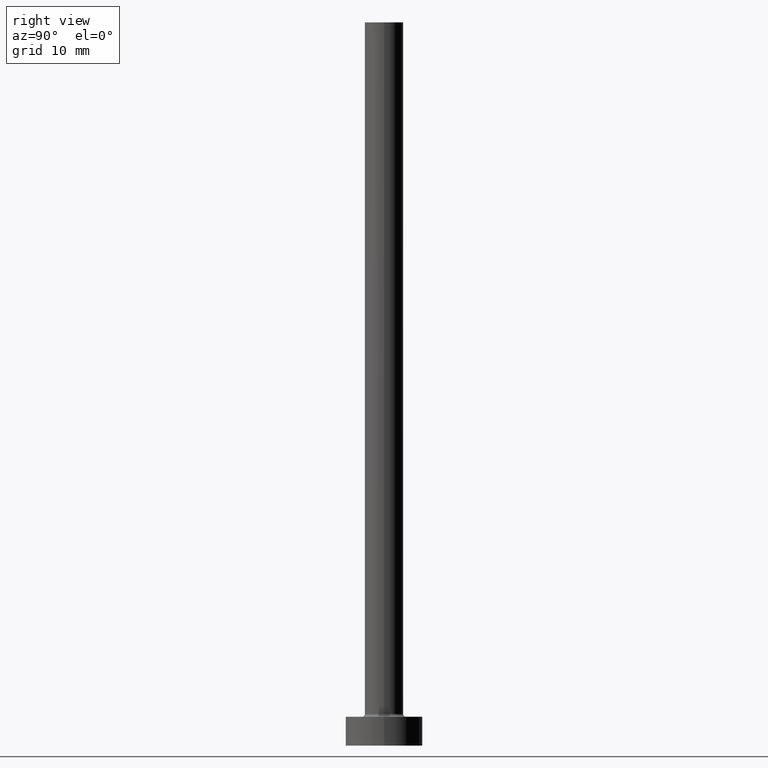
[diagram: clean part render]
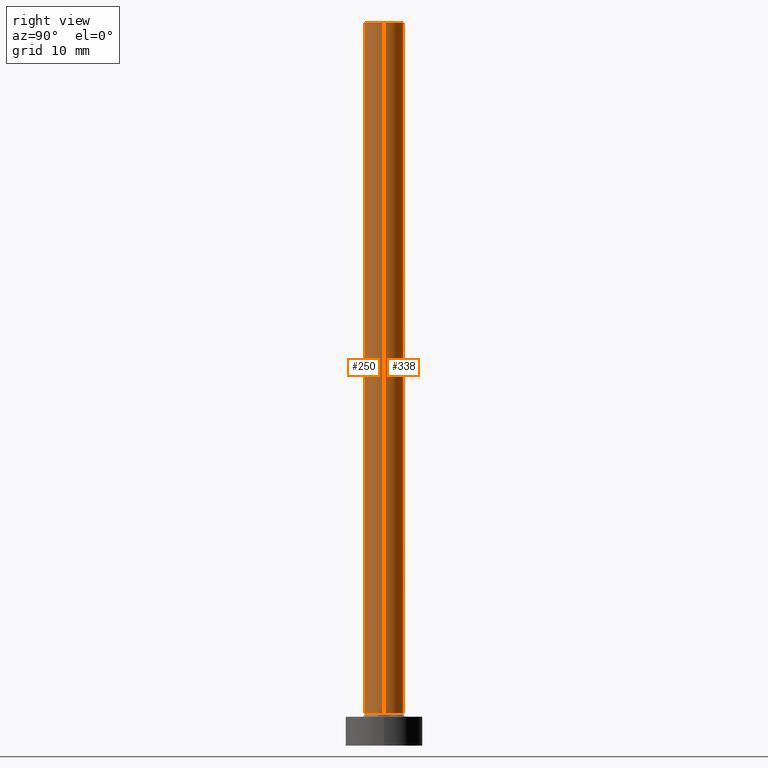
[diagram: same view with one multi-face feature highlighted, each face labeled with its STEP entity id]
A machine part, right view. The highlighted faces form ONE feature: a constant-radius fillet chain: 2 tangent blend faces with common blend radius 2 mm. The faces share edges in the B-rep.
Their STEP definitions:
[1] entity #250 (Cylinder):
#2 = ORIENTED_EDGE ( 'NONE', *, *, #368, .T. ) ;
#23 = DIRECTION ( 'NONE',  ( 1.000000000000000000, 0.000000000000000000, 0.000000000000000000 ) ) ;
#38 = CIRCLE ( 'NONE', #374, 2.000000000000000000 ) ;
#48 = DIRECTION ( 'NONE',  ( 0.000000000000000000, 0.000000000000000000, 1.000000000000000000 ) ) ;
#77 = EDGE_CURVE ( 'NONE', #411, #145, #38, .T. ) ;
#102 = CYLINDRICAL_SURFACE ( 'NONE', #157, 2.000000000000000000 ) ;
#106 = CARTESIAN_POINT ( 'NONE',  ( 2.000000000000000000, 2.449293598294706414E-16, 3.299999999999997158 ) ) ;
#107 = CIRCLE ( 'NONE', #460, 2.000000000000000000 ) ;
#128 = LINE ( 'NONE', #451, #376 ) ;
#131 = FACE_OUTER_BOUND ( 'NONE', #409, .T. ) ;
#145 = VERTEX_POINT ( 'NONE', #106 ) ;
#155 = CARTESIAN_POINT ( 'NONE',  ( 0.000000000000000000, 0.000000000000000000, 75.00000000000001421 ) ) ;
#157 = AXIS2_PLACEMENT_3D ( 'NONE', #396, #353, #281 ) ;
#185 = VERTEX_POINT ( 'NONE', #416 ) ;
#186 = ORIENTED_EDGE ( 'NONE', *, *, #77, .T. ) ;
#201 = CARTESIAN_POINT ( 'NONE',  ( -2.000000000000000000, 0.000000000000000000, 75.00000000000001421 ) ) ;
#214 = VERTEX_POINT ( 'NONE', #389 ) ;
#250 = ADVANCED_FACE ( 'NONE', ( #131 ), #102, .T. ) ;
#278 = LINE ( 'NONE', #201, #439 ) ;
#281 = DIRECTION ( 'NONE',  ( -1.000000000000000000, 0.000000000000000000, 0.000000000000000000 ) ) ;
#310 = EDGE_CURVE ( 'NONE', #214, #145, #128, .T. ) ;
#313 = ORIENTED_EDGE ( 'NONE', *, *, #310, .F. ) ;
#336 = CARTESIAN_POINT ( 'NONE',  ( 0.000000000000000000, 0.000000000000000000, 3.299999999999997158 ) ) ;
#353 = DIRECTION ( 'NONE',  ( -0.000000000000000000, -0.000000000000000000, -1.000000000000000000 ) ) ;
#364 = DIRECTION ( 'NONE',  ( 1.000000000000000000, 0.000000000000000000, 0.000000000000000000 ) ) ;
#368 = EDGE_CURVE ( 'NONE', #185, #411, #278, .T. ) ;
#371 = DIRECTION ( 'NONE',  ( 0.000000000000000000, 0.000000000000000000, 1.000000000000000000 ) ) ;
#374 = AXIS2_PLACEMENT_3D ( 'NONE', #336, #371, #364 ) ;
#376 = VECTOR ( 'NONE', #429, 1000.000000000000000 ) ;
#381 = DIRECTION ( 'NONE',  ( -0.000000000000000000, -0.000000000000000000, -1.000000000000000000 ) ) ;
#383 = EDGE_CURVE ( 'NONE', #185, #214, #107, .T. ) ;
#386 = CARTESIAN_POINT ( 'NONE',  ( -2.000000000000000000, 0.000000000000000000, 3.299999999999997158 ) ) ;
#389 = CARTESIAN_POINT ( 'NONE',  ( 2.000000000000000000, 2.449293598294706414E-16, 75.00000000000001421 ) ) ;
#396 = CARTESIAN_POINT ( 'NONE',  ( 0.000000000000000000, 0.000000000000000000, 75.00000000000001421 ) ) ;
#409 = EDGE_LOOP ( 'NONE', ( #313, #438, #2, #186 ) ) ;
#411 = VERTEX_POINT ( 'NONE', #386 ) ;
#416 = CARTESIAN_POINT ( 'NONE',  ( -2.000000000000000000, 0.000000000000000000, 75.00000000000001421 ) ) ;
#429 = DIRECTION ( 'NONE',  ( -0.000000000000000000, -0.000000000000000000, -1.000000000000000000 ) ) ;
#438 = ORIENTED_EDGE ( 'NONE', *, *, #383, .F. ) ;
#439 = VECTOR ( 'NONE', #381, 1000.000000000000000 ) ;
#451 = CARTESIAN_POINT ( 'NONE',  ( 2.000000000000000000, 2.449293598294706414E-16, 75.00000000000001421 ) ) ;
#460 = AXIS2_PLACEMENT_3D ( 'NONE', #155, #48, #23 ) ;
[2] entity #338 (Cylinder):
#18 = AXIS2_PLACEMENT_3D ( 'NONE', #31, #402, #256 ) ;
#31 = CARTESIAN_POINT ( 'NONE',  ( 0.000000000000000000, 0.000000000000000000, 75.00000000000001421 ) ) ;
#41 = EDGE_CURVE ( 'NONE', #145, #411, #244, .T. ) ;
#83 = AXIS2_PLACEMENT_3D ( 'NONE', #423, #95, #246 ) ;
#89 = EDGE_CURVE ( 'NONE', #214, #185, #220, .T. ) ;
#91 = ORIENTED_EDGE ( 'NONE', *, *, #41, .T. ) ;
#95 = DIRECTION ( 'NONE',  ( -0.000000000000000000, -0.000000000000000000, -1.000000000000000000 ) ) ;
#106 = CARTESIAN_POINT ( 'NONE',  ( 2.000000000000000000, 2.449293598294706414E-16, 3.299999999999997158 ) ) ;
#118 = ORIENTED_EDGE ( 'NONE', *, *, #310, .T. ) ;
#128 = LINE ( 'NONE', #451, #376 ) ;
#139 = CARTESIAN_POINT ( 'NONE',  ( 0.000000000000000000, 0.000000000000000000, 3.299999999999997158 ) ) ;
#145 = VERTEX_POINT ( 'NONE', #106 ) ;
#185 = VERTEX_POINT ( 'NONE', #416 ) ;
#201 = CARTESIAN_POINT ( 'NONE',  ( -2.000000000000000000, 0.000000000000000000, 75.00000000000001421 ) ) ;
#214 = VERTEX_POINT ( 'NONE', #389 ) ;
#220 = CIRCLE ( 'NONE', #18, 2.000000000000000000 ) ;
#227 = ORIENTED_EDGE ( 'NONE', *, *, #89, .F. ) ;
#244 = CIRCLE ( 'NONE', #365, 2.000000000000000000 ) ;
#246 = DIRECTION ( 'NONE',  ( -1.000000000000000000, 0.000000000000000000, 0.000000000000000000 ) ) ;
#249 = ORIENTED_EDGE ( 'NONE', *, *, #368, .F. ) ;
#256 = DIRECTION ( 'NONE',  ( 1.000000000000000000, 0.000000000000000000, 0.000000000000000000 ) ) ;
#259 = DIRECTION ( 'NONE',  ( 0.000000000000000000, 0.000000000000000000, 1.000000000000000000 ) ) ;
#269 = EDGE_LOOP ( 'NONE', ( #227, #118, #91, #249 ) ) ;
#278 = LINE ( 'NONE', #201, #439 ) ;
#289 = CYLINDRICAL_SURFACE ( 'NONE', #83, 2.000000000000000000 ) ;
#310 = EDGE_CURVE ( 'NONE', #214, #145, #128, .T. ) ;
#323 = FACE_OUTER_BOUND ( 'NONE', #269, .T. ) ;
#338 = ADVANCED_FACE ( 'NONE', ( #323 ), #289, .T. ) ;
#365 = AXIS2_PLACEMENT_3D ( 'NONE', #139, #259, #369 ) ;
#368 = EDGE_CURVE ( 'NONE', #185, #411, #278, .T. ) ;
#369 = DIRECTION ( 'NONE',  ( 1.000000000000000000, 0.000000000000000000, 0.000000000000000000 ) ) ;
#376 = VECTOR ( 'NONE', #429, 1000.000000000000000 ) ;
#381 = DIRECTION ( 'NONE',  ( -0.000000000000000000, -0.000000000000000000, -1.000000000000000000 ) ) ;
#386 = CARTESIAN_POINT ( 'NONE',  ( -2.000000000000000000, 0.000000000000000000, 3.299999999999997158 ) ) ;
#389 = CARTESIAN_POINT ( 'NONE',  ( 2.000000000000000000, 2.449293598294706414E-16, 75.00000000000001421 ) ) ;
#402 = DIRECTION ( 'NONE',  ( 0.000000000000000000, 0.000000000000000000, 1.000000000000000000 ) ) ;
#411 = VERTEX_POINT ( 'NONE', #386 ) ;
#416 = CARTESIAN_POINT ( 'NONE',  ( -2.000000000000000000, 0.000000000000000000, 75.00000000000001421 ) ) ;
#423 = CARTESIAN_POINT ( 'NONE',  ( 0.000000000000000000, 0.000000000000000000, 75.00000000000001421 ) ) ;
#429 = DIRECTION ( 'NONE',  ( -0.000000000000000000, -0.000000000000000000, -1.000000000000000000 ) ) ;
#439 = VECTOR ( 'NONE', #381, 1000.000000000000000 ) ;
#451 = CARTESIAN_POINT ( 'NONE',  ( 2.000000000000000000, 2.449293598294706414E-16, 75.00000000000001421 ) ) ;